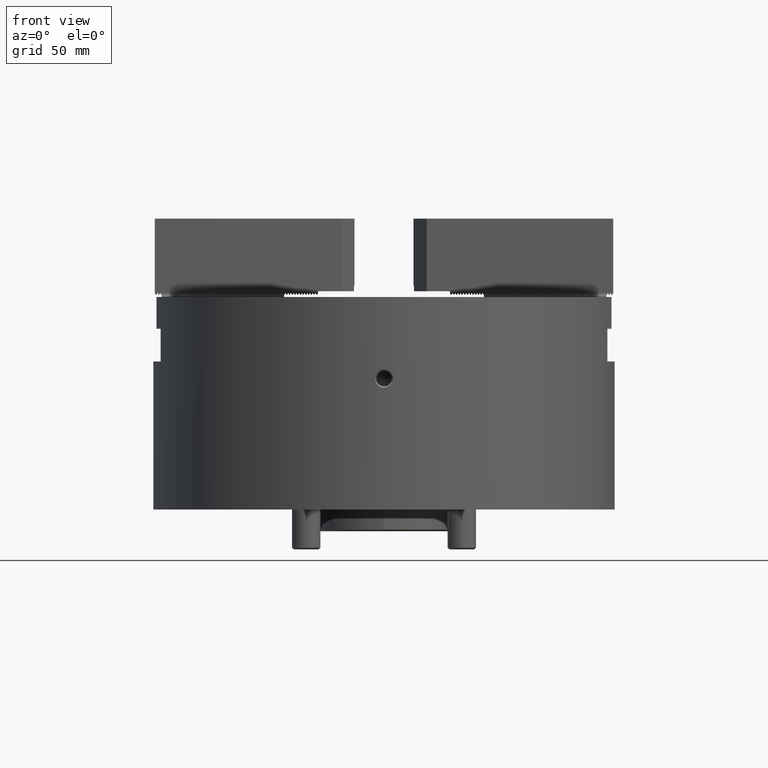
[diagram: clean part render]
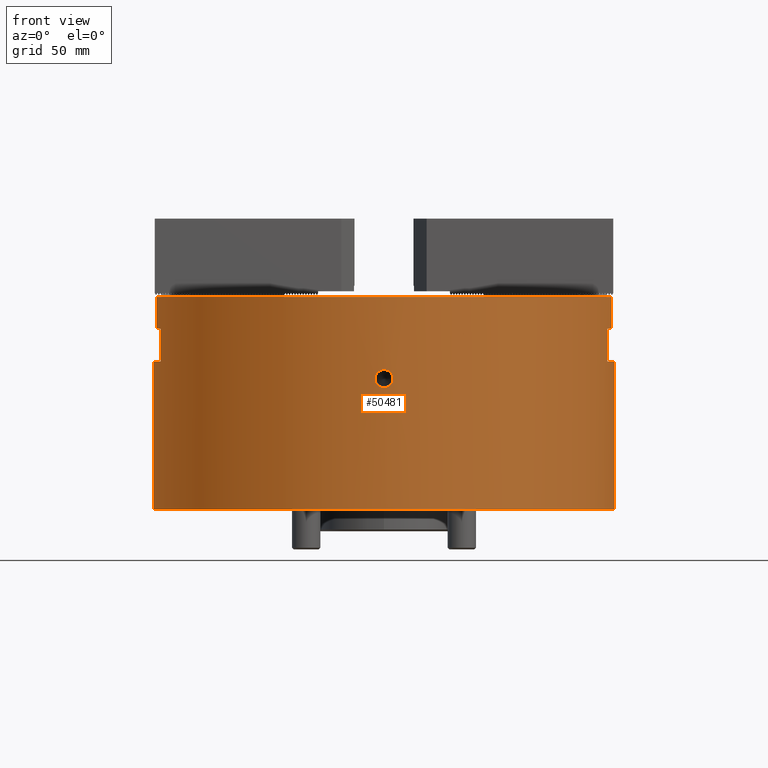
[diagram: same view with one face highlighted and labeled with its STEP entity id]
A machine part, front view. The second image highlights one B-rep face of the part: STEP entity #50481.
In plain terms, the highlighted cylindrical surface (bore or boss wall) has radius 127 mm, axis along (-0, 0, 1).
Its self-contained STEP definition (entity closure, byte-faithful):
#691=B_SPLINE_CURVE_WITH_KNOTS('',3,(#73049,#73050,#73051,#73052,#73053,
#73054,#73055,#73056,#73057,#73058,#73059,#73060,#73061,#73062,#73063,#73064,
#73065,#73066,#73067,#73068,#73069,#73070,#73071,#73072,#73073,#73074,#73075,
#73076,#73077,#73078,#73079,#73080,#73081,#73082,#73083),.UNSPECIFIED.,
 .T.,.F.,(1,1,1,1,1,1,1,1,1,1,1,1,1,1,1,1,1,1,1,1,1,1,1,1,1,1,1,1,1,1,1,
1,1,1,1,1,1,1,1),(-0.0953947368421053,-0.0641447368421053,-0.0328947368421053,
0.,0.0296875,0.060859375,0.09210546875,0.1233552734375,0.154605263671875,
0.185855263183594,0.21710526315918,0.248355263157959,0.279605263157898,
0.310855263157895,0.342105263157895,0.373355263157895,0.404605263157895,
0.435855263157895,0.467105263157895,0.498355263157895,0.529605263157895,
0.560855263157895,0.592105263157895,0.623355263157895,0.654605263157895,
0.685855263157895,0.717105263157895,0.748355263157895,0.779605263157895,
0.810855263157895,0.842105263157895,0.873355263157895,0.904605263157895,
0.935855263157895,0.967105263157895,1.,1.0296875,1.060859375,1.09210546875),
 .UNSPECIFIED.);
#693=B_SPLINE_CURVE_WITH_KNOTS('',3,(#73200,#73201,#73202,#73203,#73204,
#73205,#73206,#73207,#73208,#73209,#73210,#73211,#73212,#73213,#73214,#73215,
#73216,#73217,#73218,#73219,#73220,#73221,#73222,#73223,#73224,#73225,#73226,
#73227,#73228,#73229,#73230,#73231,#73232,#73233,#73234),.UNSPECIFIED.,
 .T.,.F.,(1,1,1,1,1,1,1,1,1,1,1,1,1,1,1,1,1,1,1,1,1,1,1,1,1,1,1,1,1,1,1,
1,1,1,1,1,1,1,1),(-0.0953947368421053,-0.0641447368421053,-0.0328947368421053,
0.,0.0296875,0.060859375,0.09210546875,0.1233552734375,0.154605263671875,
0.185855263183594,0.21710526315918,0.248355263157959,0.279605263157898,
0.310855263157895,0.342105263157895,0.373355263157895,0.404605263157895,
0.435855263157895,0.467105263157895,0.498355263157895,0.529605263157895,
0.560855263157895,0.592105263157895,0.623355263157895,0.654605263157895,
0.685855263157895,0.717105263157895,0.748355263157895,0.779605263157895,
0.810855263157895,0.842105263157895,0.873355263157895,0.904605263157895,
0.935855263157895,0.967105263157895,1.,1.0296875,1.060859375,1.09210546875),
 .UNSPECIFIED.);
#721=CYLINDRICAL_SURFACE('',#52958,127.);
#1238=CIRCLE('',#52708,127.);
#1242=CIRCLE('',#52718,127.);
#1244=CIRCLE('',#52722,127.);
#1245=CIRCLE('',#52724,127.);
#1267=CIRCLE('',#52884,127.);
#1298=CIRCLE('',#52940,127.);
#1301=CIRCLE('',#52945,127.);
#1307=CIRCLE('',#52957,127.);
#1308=CIRCLE('',#52959,127.);
#3084=ORIENTED_EDGE('',*,*,#18173,.F.);
#3085=ORIENTED_EDGE('',*,*,#18168,.F.);
#3086=ORIENTED_EDGE('',*,*,#18162,.F.);
#3087=ORIENTED_EDGE('',*,*,#17675,.F.);
#3088=ORIENTED_EDGE('',*,*,#17614,.F.);
#3089=ORIENTED_EDGE('',*,*,#17633,.F.);
#3090=ORIENTED_EDGE('',*,*,#17628,.F.);
#3091=ORIENTED_EDGE('',*,*,#18239,.F.);
#3092=ORIENTED_EDGE('',*,*,#18223,.F.);
#3093=ORIENTED_EDGE('',*,*,#18214,.F.);
#3094=ORIENTED_EDGE('',*,*,#17651,.F.);
#3095=ORIENTED_EDGE('',*,*,#17673,.F.);
#3096=ORIENTED_EDGE('',*,*,#17644,.F.);
#3097=ORIENTED_EDGE('',*,*,#17664,.F.);
#3098=ORIENTED_EDGE('',*,*,#18210,.F.);
#3099=ORIENTED_EDGE('',*,*,#18237,.F.);
#3100=ORIENTED_EDGE('',*,*,#18226,.T.);
#3101=ORIENTED_EDGE('',*,*,#18158,.T.);
#3102=ORIENTED_EDGE('',*,*,#18155,.T.);
#17614=EDGE_CURVE('',#25383,#25381,#30269,.T.);
#17628=EDGE_CURVE('',#25397,#25398,#30282,.T.);
#17633=EDGE_CURVE('',#25398,#25383,#1238,.T.);
#17644=EDGE_CURVE('',#25410,#25408,#30295,.T.);
#17651=EDGE_CURVE('',#25417,#25418,#30302,.T.);
#17664=EDGE_CURVE('',#25428,#25410,#1242,.T.);
#17673=EDGE_CURVE('',#25408,#25417,#1244,.T.);
#17675=EDGE_CURVE('',#25381,#25437,#1245,.T.);
#18155=EDGE_CURVE('',#25763,#25763,#691,.T.);
#18158=EDGE_CURVE('',#25767,#25767,#693,.T.);
#18162=EDGE_CURVE('',#25437,#25772,#30669,.T.);
#18168=EDGE_CURVE('',#25772,#25776,#1267,.T.);
#18173=EDGE_CURVE('',#25776,#25780,#30678,.T.);
#18210=EDGE_CURVE('',#25818,#25428,#30686,.T.);
#18214=EDGE_CURVE('',#25418,#25821,#1298,.T.);
#18223=EDGE_CURVE('',#25821,#25828,#30697,.T.);
#18226=EDGE_CURVE('',#25830,#25830,#1301,.T.);
#18237=EDGE_CURVE('',#25780,#25818,#1307,.T.);
#18239=EDGE_CURVE('',#25828,#25397,#1308,.T.);
#25381=VERTEX_POINT('',#69912);
#25383=VERTEX_POINT('',#69916);
#25397=VERTEX_POINT('',#69947);
#25398=VERTEX_POINT('',#69949);
#25408=VERTEX_POINT('',#69975);
#25410=VERTEX_POINT('',#69979);
#25417=VERTEX_POINT('',#69995);
#25418=VERTEX_POINT('',#69997);
#25428=VERTEX_POINT('',#70021);
#25437=VERTEX_POINT('',#70045);
#25763=VERTEX_POINT('',#73084);
#25767=VERTEX_POINT('',#73235);
#25772=VERTEX_POINT('',#73319);
#25776=VERTEX_POINT('',#73330);
#25780=VERTEX_POINT('',#73340);
#25818=VERTEX_POINT('',#73437);
#25821=VERTEX_POINT('',#73446);
#25828=VERTEX_POINT('',#73463);
#25830=VERTEX_POINT('',#73469);
#30269=LINE('',#69917,#36708);
#30282=LINE('',#69948,#36721);
#30295=LINE('',#69980,#36734);
#30302=LINE('',#69996,#36741);
#30669=LINE('',#73318,#37108);
#30678=LINE('',#73339,#37117);
#30686=LINE('',#73438,#37125);
#30697=LINE('',#73462,#37136);
#36708=VECTOR('',#56299,1000.);
#36721=VECTOR('',#56320,1000.);
#36734=VECTOR('',#56345,1000.);
#36741=VECTOR('',#56356,1000.);
#37108=VECTOR('',#57061,1000.);
#37117=VECTOR('',#57078,1000.);
#37125=VECTOR('',#57190,1000.);
#37136=VECTOR('',#57209,1000.);
#43413=EDGE_LOOP('',(#3084,#3085,#3086,#3087,#3088,#3089,#3090,#3091,#3092,
#3093,#3094,#3095,#3096,#3097,#3098,#3099));
#43414=EDGE_LOOP('',(#3100));
#43415=EDGE_LOOP('',(#3101));
#43416=EDGE_LOOP('',(#3102));
#46104=FACE_BOUND('',#43413,.T.);
#46105=FACE_BOUND('',#43414,.T.);
#46106=FACE_BOUND('',#43415,.T.);
#46107=FACE_BOUND('',#43416,.T.);
#50481=ADVANCED_FACE('',(#46104,#46105,#46106,#46107),#721,.T.);
#52708=AXIS2_PLACEMENT_3D('',#69957,#56328,#56329);
#52718=AXIS2_PLACEMENT_3D('',#70022,#56375,#56376);
#52722=AXIS2_PLACEMENT_3D('',#70040,#56390,#56391);
#52724=AXIS2_PLACEMENT_3D('',#70044,#56395,#56396);
#52884=AXIS2_PLACEMENT_3D('',#73329,#57069,#57070);
#52940=AXIS2_PLACEMENT_3D('',#73445,#57196,#57197);
#52945=AXIS2_PLACEMENT_3D('',#73468,#57215,#57216);
#52957=AXIS2_PLACEMENT_3D('',#73489,#57244,#57245);
#52958=AXIS2_PLACEMENT_3D('',#73491,#57247,#57248);
#52959=AXIS2_PLACEMENT_3D('',#73492,#57249,#57250);
#56299=DIRECTION('',(2.34290668463255E-15,0.,-1.));
#56320=DIRECTION('',(2.34290668463255E-15,0.,-1.));
#56328=DIRECTION('',(2.34290668463255E-15,-8.75811540203011E-47,-1.));
#56329=DIRECTION('',(-1.,0.,-2.34938927455127E-15));
#56345=DIRECTION('',(2.34290668463255E-15,0.,-1.));
#56356=DIRECTION('',(-2.34290668463255E-15,0.,1.));
#56375=DIRECTION('',(2.34290668463255E-15,0.,-1.));
#56376=DIRECTION('',(-1.,0.,-2.34938927455127E-15));
#56390=DIRECTION('',(-2.34290668463255E-15,0.,1.));
#56391=DIRECTION('',(1.,0.,2.34938927455127E-15));
#56395=DIRECTION('',(-2.34290668463255E-15,8.75811540203011E-47,1.));
#56396=DIRECTION('',(1.,0.,2.34938927455127E-15));
#57061=DIRECTION('',(-2.34290668463255E-15,0.,1.));
#57069=DIRECTION('',(2.34290668463255E-15,-8.75811540203011E-47,-1.));
#57070=DIRECTION('',(-1.,0.,-2.34938927455127E-15));
#57078=DIRECTION('',(-2.34290668463255E-15,0.,1.));
#57190=DIRECTION('',(2.34290668463255E-15,0.,-1.));
#57196=DIRECTION('',(2.34290668463255E-15,0.,-1.));
#57197=DIRECTION('',(-1.,0.,-2.34938927455127E-15));
#57209=DIRECTION('',(-2.34290668463255E-15,0.,1.));
#57215=DIRECTION('',(-2.34290668463255E-15,0.,1.));
#57216=DIRECTION('',(1.,0.,2.29475231467798E-15));
#57244=DIRECTION('',(-2.34290668463255E-15,0.,1.));
#57245=DIRECTION('',(1.,0.,2.34290668463255E-15));
#57247=DIRECTION('',(-2.34290668463255E-15,0.,1.));
#57248=DIRECTION('',(1.,0.,2.34290668463255E-15));
#57249=DIRECTION('',(-2.34290668463255E-15,0.,1.));
#57250=DIRECTION('',(1.,0.,2.34290668463255E-15));
#69912=CARTESIAN_POINT('',(123.031500031496,-31.5,-35.4999999999997));
#69916=CARTESIAN_POINT('',(123.031500031496,-31.5,-17.4999999999997));
#69917=CARTESIAN_POINT('',(123.031500031496,-31.5,2.88251323844162E-13));
#69947=CARTESIAN_POINT('',(125.251746494809,-21.,2.92574354053682E-13));
#69948=CARTESIAN_POINT('',(125.251746494809,-21.,2.93453154124591E-13));
#69949=CARTESIAN_POINT('',(125.251746494809,-21.,-17.4999999999997));
#69957=CARTESIAN_POINT('',(4.10008669810697E-14,0.,-17.5));
#69975=CARTESIAN_POINT('',(-123.031500031496,31.5,-35.5000000000003));
#69979=CARTESIAN_POINT('',(-123.031500031496,31.5,-17.5000000000003));
#69980=CARTESIAN_POINT('',(-123.031500031496,31.5,-2.88251323844162E-13));
#69995=CARTESIAN_POINT('',(-123.031500031496,-31.5,-35.5000000000003));
#69996=CARTESIAN_POINT('',(-123.031500031496,-31.5,-2.88251323844162E-13));
#69997=CARTESIAN_POINT('',(-123.031500031496,-31.5,-17.5000000000003));
#70021=CARTESIAN_POINT('',(-125.251746494809,21.,-17.5000000000003));
#70022=CARTESIAN_POINT('',(4.10008669810697E-14,0.,-17.5));
#70040=CARTESIAN_POINT('',(8.31731873044556E-14,0.,-35.5));
#70044=CARTESIAN_POINT('',(8.31731873044556E-14,0.,-35.5));
#70045=CARTESIAN_POINT('',(123.031500031496,31.5,-35.4999999999997));
#73049=CARTESIAN_POINT('',(-1.0161764974343,-126.997225088058,-40.0962531707698));
#73050=CARTESIAN_POINT('',(-0.0336638984195047,-127.001282516709,-39.9913229888016));
#73051=CARTESIAN_POINT('',(0.948470324026654,-126.997630295208,-40.0868676619447));
#73052=CARTESIAN_POINT('',(1.87807069343838,-126.987210914768,-40.3597739645693));
#73053=CARTESIAN_POINT('',(2.7528781025201,-126.971063705455,-40.8102075025405));
#73054=CARTESIAN_POINT('',(3.52553108886174,-126.951707499139,-41.4219499325664));
#73055=CARTESIAN_POINT('',(4.15571957859572,-126.9323856545,-42.1760256982555));
#73056=CARTESIAN_POINT('',(4.62736492240782,-126.915861885074,-43.0388273040778));
#73057=CARTESIAN_POINT('',(4.92580429516961,-126.90448697985,-43.974147048714));
#73058=CARTESIAN_POINT('',(5.03764687212121,-126.900039670881,-44.949798348828));
#73059=CARTESIAN_POINT('',(4.94796790935223,-126.903613961528,-45.9247853754721));
#73060=CARTESIAN_POINT('',(4.66865662548075,-126.91433087698,-46.8655940753372));
#73061=CARTESIAN_POINT('',(4.21495254346232,-126.930409152128,-47.7359783051967));
#73062=CARTESIAN_POINT('',(3.60022080585325,-126.949581917357,-48.5037867303507));
#73063=CARTESIAN_POINT('',(2.84205880390689,-126.969076461763,-49.1301487260412));
#73064=CARTESIAN_POINT('',(1.97242721423622,-126.985772999058,-49.5999740601019));
#73065=CARTESIAN_POINT('',(1.02936046268029,-126.997062267857,-49.8975246763063));
#73066=CARTESIAN_POINT('',(0.0457808138070646,-127.001275298507,-50.0085499751028));
#73067=CARTESIAN_POINT('',(-0.935569275771278,-126.997786222096,-49.9184859886719));
#73068=CARTESIAN_POINT('',(-1.88117770798791,-126.987165860385,-49.6403312563906));
#73069=CARTESIAN_POINT('',(-2.75551816876566,-126.971003784584,-49.1886855555848));
#73070=CARTESIAN_POINT('',(-3.52731095987739,-126.95165710339,-48.576127033882));
#73071=CARTESIAN_POINT('',(-4.15718998902561,-126.932337235251,-47.8219398434773));
#73072=CARTESIAN_POINT('',(-4.62863750823961,-126.915815264837,-46.959716833282));
#73073=CARTESIAN_POINT('',(-4.92678238921737,-126.904448692081,-46.0249408351659));
#73074=CARTESIAN_POINT('',(-5.03778971696091,-126.900033931938,-45.0491144852899));
#73075=CARTESIAN_POINT('',(-4.94678765581758,-126.903660645655,-44.0732816103013));
#73076=CARTESIAN_POINT('',(-4.66629896004843,-126.914418545864,-43.131761069463));
#73077=CARTESIAN_POINT('',(-4.21170868895592,-126.930518149762,-42.260764414923));
#73078=CARTESIAN_POINT('',(-3.59624484481716,-126.949695119188,-41.4924194444146));
#73079=CARTESIAN_POINT('',(-2.83897505654057,-126.969140617259,-40.8662191172923));
#73080=CARTESIAN_POINT('',(-1.97256160075047,-126.985762731798,-40.3976303846657));
#73081=CARTESIAN_POINT('',(-1.0161764974343,-126.997225088058,-40.0962531707698));
#73082=CARTESIAN_POINT('',(-0.0336638984195047,-127.001282516709,-39.9913229888016));
#73083=CARTESIAN_POINT('',(0.948470324026654,-126.997630295208,-40.0868676619447));
#73084=CARTESIAN_POINT('',(7.04445973097383E-14,-127.,-40.0246921691644));
#73200=CARTESIAN_POINT('',(1.01617649736952,126.997225088058,-40.0962531707729));
#73201=CARTESIAN_POINT('',(0.0336638984448819,127.001282516709,-39.9913229887978));
#73202=CARTESIAN_POINT('',(-0.948470324064576,126.997630295208,-40.0868676619559));
#73203=CARTESIAN_POINT('',(-1.87807069341288,126.987210914769,-40.3597739645875));
#73204=CARTESIAN_POINT('',(-2.75287810256049,126.971063705454,-40.8102075025552));
#73205=CARTESIAN_POINT('',(-3.52553108892311,126.951707499137,-41.4219499326219));
#73206=CARTESIAN_POINT('',(-4.15571957860931,126.932385654499,-42.1760256982621));
#73207=CARTESIAN_POINT('',(-4.62736492241882,126.915861885074,-43.0388273040556));
#73208=CARTESIAN_POINT('',(-4.92580429519816,126.904486979849,-43.97414704865));
#73209=CARTESIAN_POINT('',(-5.03764687212727,126.900039670881,-44.9497983488299));
#73210=CARTESIAN_POINT('',(-4.94796790932297,126.903613961529,-45.9247853755352));
#73211=CARTESIAN_POINT('',(-4.66865662549415,126.91433087698,-46.8655940753255));
#73212=CARTESIAN_POINT('',(-4.21495254355596,126.930409152125,-47.7359783051144));
#73213=CARTESIAN_POINT('',(-3.60022080580193,126.949581917359,-48.5037867304533));
#73214=CARTESIAN_POINT('',(-2.84205880375272,126.969076461767,-49.1301487261216));
#73215=CARTESIAN_POINT('',(-1.97242721421973,126.985772999058,-49.5999740601356));
#73216=CARTESIAN_POINT('',(-1.02936046262406,126.997062267857,-49.8975246763364));
#73217=CARTESIAN_POINT('',(-0.0457808137783188,127.001275298507,-50.0085499751006));
#73218=CARTESIAN_POINT('',(0.935569275810338,126.997786222096,-49.9184859886725));
#73219=CARTESIAN_POINT('',(1.8811777079247,126.987165860386,-49.6403312564208));
#73220=CARTESIAN_POINT('',(2.75551816872122,126.971003784585,-49.1886855556394));
#73221=CARTESIAN_POINT('',(3.52731095986593,126.95165710339,-48.576127033883));
#73222=CARTESIAN_POINT('',(4.15718998900671,126.932337235252,-47.8219398434843));
#73223=CARTESIAN_POINT('',(4.62863750823628,126.915815264837,-46.9597168332206));
#73224=CARTESIAN_POINT('',(4.92678238918318,126.904448692082,-46.0249408350981));
#73225=CARTESIAN_POINT('',(5.03778971695728,126.900033931938,-45.0491144852971));
#73226=CARTESIAN_POINT('',(4.94678765585086,126.903660645654,-44.0732816104373));
#73227=CARTESIAN_POINT('',(4.66629896008475,126.914418545863,-43.1317610694738));
#73228=CARTESIAN_POINT('',(4.21170868890632,126.930518149764,-42.2607644149077));
#73229=CARTESIAN_POINT('',(3.5962448448704,126.949695119187,-41.4924194444773));
#73230=CARTESIAN_POINT('',(2.83897505651204,126.96914061726,-40.8662191172335));
#73231=CARTESIAN_POINT('',(1.97256160062599,126.9857627318,-40.3976303846123));
#73232=CARTESIAN_POINT('',(1.01617649736952,126.997225088058,-40.0962531707729));
#73233=CARTESIAN_POINT('',(0.0336638984448819,127.001282516709,-39.9913229887978));
#73234=CARTESIAN_POINT('',(-0.948470324064576,126.997630295208,-40.0868676619559));
#73235=CARTESIAN_POINT('',(1.01550626008081E-13,127.,-40.0246921691644));
#73318=CARTESIAN_POINT('',(123.031500031496,31.5,2.88251323844162E-13));
#73319=CARTESIAN_POINT('',(123.031500031496,31.5,-17.4999999999997));
#73329=CARTESIAN_POINT('',(4.10008669810697E-14,0.,-17.5));
#73330=CARTESIAN_POINT('',(125.251746494809,21.,-17.4999999999997));
#73339=CARTESIAN_POINT('',(125.251746494809,21.,2.93453154124591E-13));
#73340=CARTESIAN_POINT('',(125.251746494809,21.,2.92574354053682E-13));
#73437=CARTESIAN_POINT('',(-125.251746494809,21.,-2.94331954195499E-13));
#73438=CARTESIAN_POINT('',(-125.251746494809,21.,-2.93453154124591E-13));
#73445=CARTESIAN_POINT('',(4.10008669810697E-14,0.,-17.5));
#73446=CARTESIAN_POINT('',(-125.251746494809,-21.,-17.5000000000003));
#73462=CARTESIAN_POINT('',(-125.251746494809,-21.,-2.93453154124591E-13));
#73463=CARTESIAN_POINT('',(-125.251746494809,-21.,-2.94331954195499E-13));
#73468=CARTESIAN_POINT('',(2.74120082102008E-13,0.,-117.));
#73469=CARTESIAN_POINT('',(127.,0.,-117.));
#73489=CARTESIAN_POINT('',(2.05894656058624E-30,0.,-8.78800070908139E-16));
#73491=CARTESIAN_POINT('',(0.,0.,0.));
#73492=CARTESIAN_POINT('',(2.05894656058624E-30,0.,-8.78800070908139E-16));